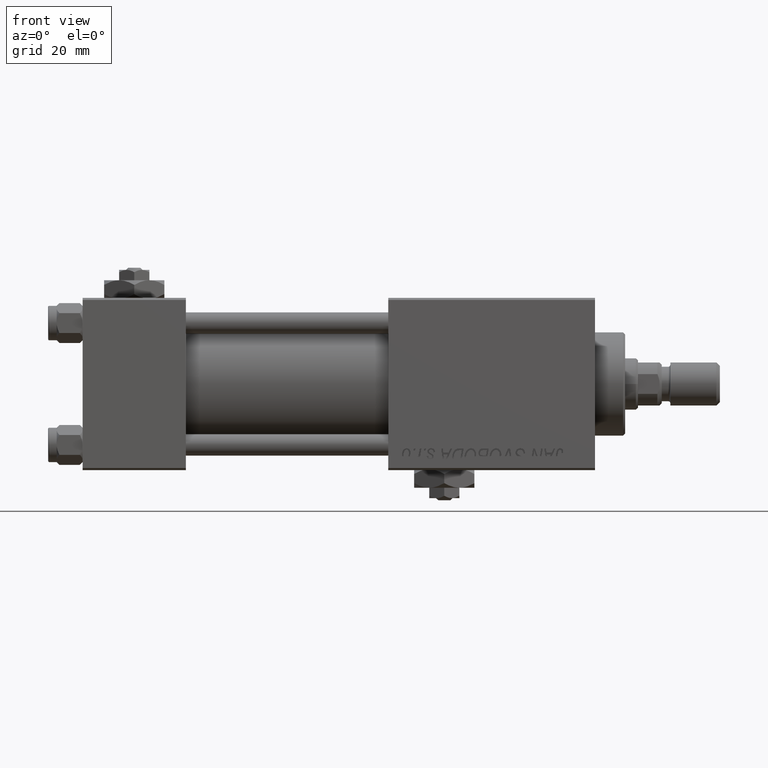
[diagram: clean part render]
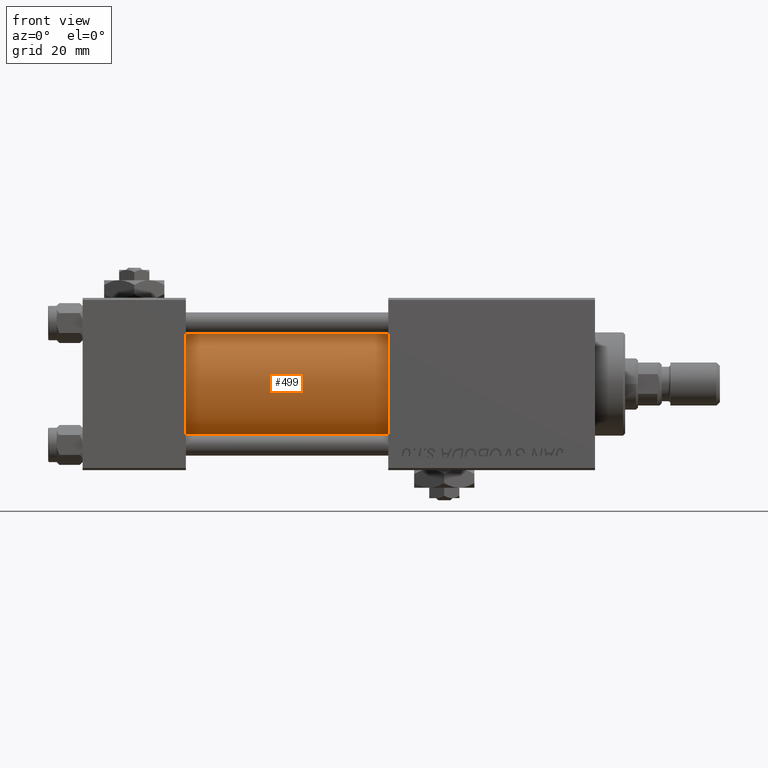
[diagram: same view with one face highlighted and labeled with its STEP entity id]
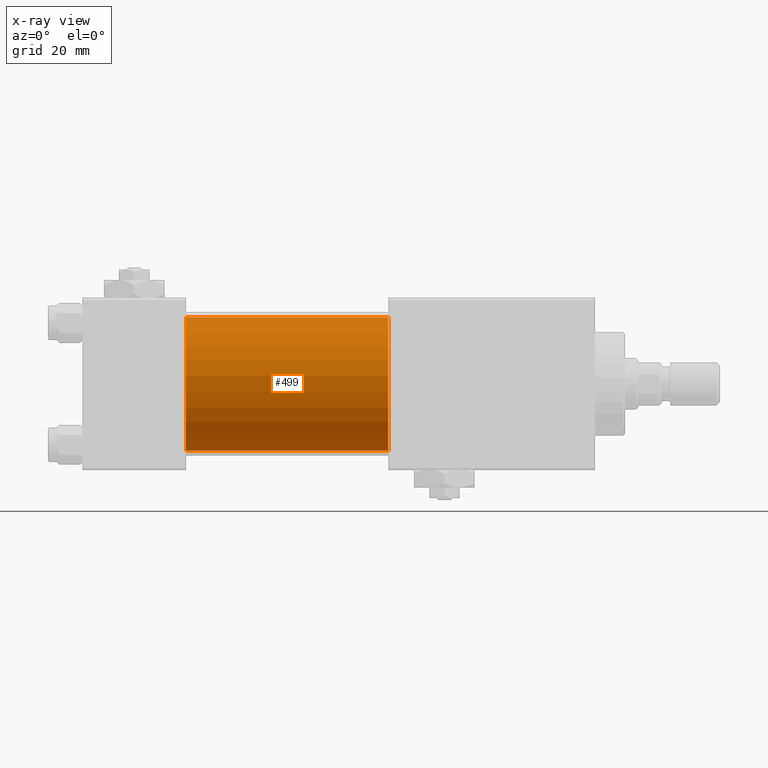
[diagram: x-ray of the same camera — body ghosted, the highlighted face saturated]
A machine part, front view. The second image highlights one B-rep face of the part: STEP entity #499.
The next image is the same camera in x-ray: the body ghosted, the highlighted face saturated — about 0% of this face is hidden behind the body in this view.
In plain terms, the highlighted cylindrical surface (partial cylindrical patch) has radius 15.5 mm, axis along (-1, -0, -0).
Its self-contained STEP definition (entity closure, byte-faithful):
#499 = ADVANCED_FACE ( 'NONE', ( #42064 ), #18624, .T. ) ;
#4860 = CIRCLE ( 'NONE', #29461, 15.50000000000000000 ) ;
#4965 = DIRECTION ( 'NONE',  ( -1.000000000000000000, -0.000000000000000000, -0.000000000000000000 ) ) ;
#5189 = VERTEX_POINT ( 'NONE', #25171 ) ;
#5444 = ORIENTED_EDGE ( 'NONE', *, *, #23884, .T. ) ;
#5619 = DIRECTION ( 'NONE',  ( -1.000000000000000000, -0.000000000000000000, -0.000000000000000000 ) ) ;
#6814 = ORIENTED_EDGE ( 'NONE', *, *, #51834, .F. ) ;
#9792 = AXIS2_PLACEMENT_3D ( 'NONE', #42328, #5619, #26077 ) ;
#12519 = DIRECTION ( 'NONE',  ( 1.000000000000000000, 0.000000000000000000, 0.000000000000000000 ) ) ;
#16487 = CARTESIAN_POINT ( 'NONE',  ( 24.00000000000000000, -2.602085213965210642E-15, 0.000000000000000000 ) ) ;
#17978 = CARTESIAN_POINT ( 'NONE',  ( 24.00000000000000000, -2.602085213965210642E-15, 15.50000000000000000 ) ) ;
#18624 = CYLINDRICAL_SURFACE ( 'NONE', #9792, 15.50000000000000000 ) ;
#22551 = EDGE_CURVE ( 'NONE', #24909, #33038, #38393, .T. ) ;
#22565 = EDGE_LOOP ( 'NONE', ( #35475, #6814, #30960, #5444 ) ) ;
#23812 = VERTEX_POINT ( 'NONE', #47906 ) ;
#23884 = EDGE_CURVE ( 'NONE', #33038, #23812, #44215, .T. ) ;
#24909 = VERTEX_POINT ( 'NONE', #40998 ) ;
#25171 = CARTESIAN_POINT ( 'NONE',  ( 71.00000000000001421, -7.038826752868131828E-16, -15.50000000000000000 ) ) ;
#26077 = DIRECTION ( 'NONE',  ( 0.000000000000000000, 0.000000000000000000, 1.000000000000000000 ) ) ;
#26349 = AXIS2_PLACEMENT_3D ( 'NONE', #16487, #12519, #28736 ) ;
#28736 = DIRECTION ( 'NONE',  ( 0.000000000000000000, 0.000000000000000000, 1.000000000000000000 ) ) ;
#29461 = AXIS2_PLACEMENT_3D ( 'NONE', #32589, #49109, #44062 ) ;
#30647 = DIRECTION ( 'NONE',  ( -1.000000000000000000, -0.000000000000000000, -0.000000000000000000 ) ) ;
#30960 = ORIENTED_EDGE ( 'NONE', *, *, #22551, .T. ) ;
#31994 = VECTOR ( 'NONE', #4965, 1000.000000000000000 ) ;
#32589 = CARTESIAN_POINT ( 'NONE',  ( 71.00000000000001421, -2.602085213965210642E-15, 0.000000000000000000 ) ) ;
#33038 = VERTEX_POINT ( 'NONE', #17978 ) ;
#33150 = CARTESIAN_POINT ( 'NONE',  ( 71.00000000000001421, -7.038826752868131828E-16, -15.50000000000000000 ) ) ;
#35475 = ORIENTED_EDGE ( 'NONE', *, *, #47457, .F. ) ;
#38178 = VECTOR ( 'NONE', #30647, 1000.000000000000000 ) ;
#38393 = LINE ( 'NONE', #42388, #38178 ) ;
#40998 = CARTESIAN_POINT ( 'NONE',  ( 71.00000000000001421, -2.602085213965210642E-15, 15.50000000000000000 ) ) ;
#41667 = LINE ( 'NONE', #33150, #31994 ) ;
#42064 = FACE_OUTER_BOUND ( 'NONE', #22565, .T. ) ;
#42328 = CARTESIAN_POINT ( 'NONE',  ( 71.00000000000001421, -2.602085213965210642E-15, 0.000000000000000000 ) ) ;
#42388 = CARTESIAN_POINT ( 'NONE',  ( 71.00000000000001421, -2.602085213965210642E-15, 15.50000000000000000 ) ) ;
#44062 = DIRECTION ( 'NONE',  ( 0.000000000000000000, 0.000000000000000000, -1.000000000000000000 ) ) ;
#44215 = CIRCLE ( 'NONE', #26349, 15.50000000000000000 ) ;
#47457 = EDGE_CURVE ( 'NONE', #5189, #23812, #41667, .T. ) ;
#47906 = CARTESIAN_POINT ( 'NONE',  ( 24.00000000000000000, -7.038826752868131828E-16, -15.50000000000000000 ) ) ;
#49109 = DIRECTION ( 'NONE',  ( 1.000000000000000000, 0.000000000000000000, 0.000000000000000000 ) ) ;
#51834 = EDGE_CURVE ( 'NONE', #24909, #5189, #4860, .T. ) ;